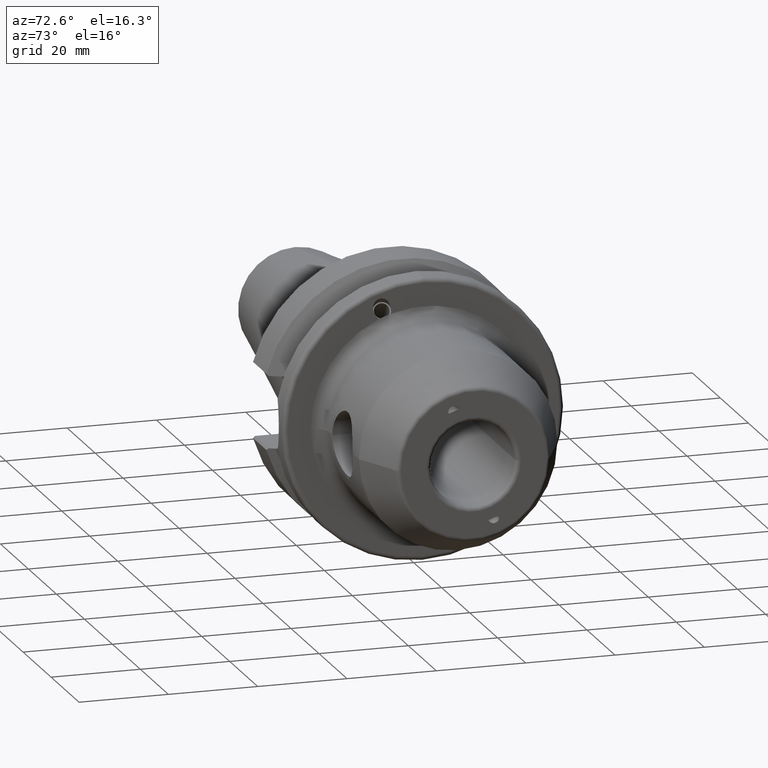
[diagram: clean part render]
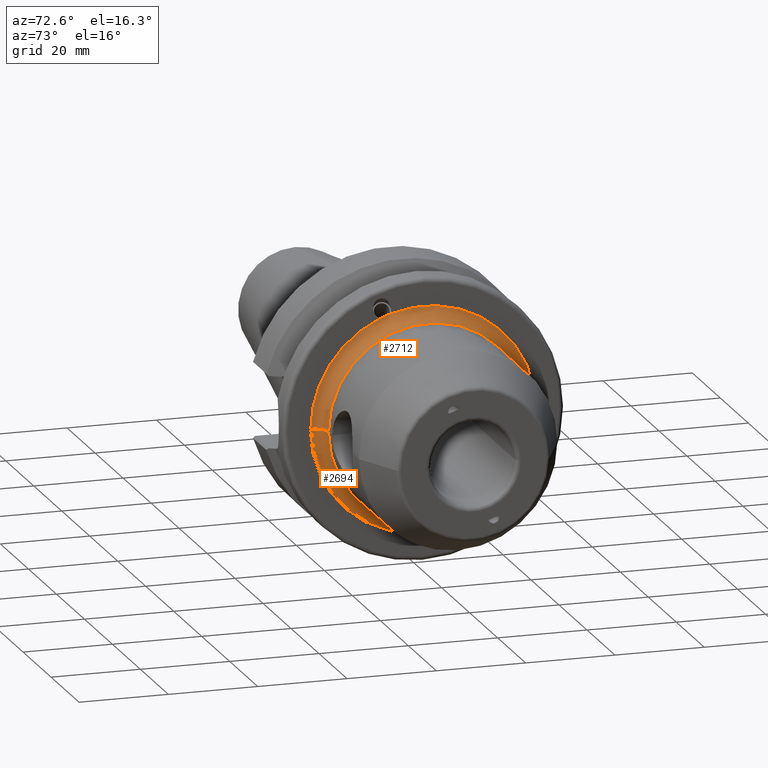
[diagram: same view with one multi-face feature highlighted, each face labeled with its STEP entity id]
A machine part, auxiliary view. The highlighted faces form ONE feature: a constant-radius fillet chain: 2 tangent blend faces with common blend radius 3 mm. The faces share edges in the B-rep.
Their STEP definitions:
[1] entity #2694 (Torus):
#358=CARTESIAN_POINT('',(3.E1,2.219152649285E1,-1.219334620643E0));
#421=CARTESIAN_POINT('',(2.989871759724E1,2.222671017497E1,0.E0));
#422=CARTESIAN_POINT('',(2.989871759724E1,2.222671017497E1,-1.934786030928E-1));
#423=CARTESIAN_POINT('',(2.991413838233E1,2.222107590173E1,-5.902465465188E-1));
#424=CARTESIAN_POINT('',(2.996489904374E1,2.220321697114E1,-1.006571401934E0));
#425=CARTESIAN_POINT('',(3.E1,2.219152649285E1,-1.219334620643E0));
#427=CARTESIAN_POINT('',(3.E1,2.5225E1,0.E0));
#428=DIRECTION('',(0.E0,0.E0,-1.E0));
#429=DIRECTION('',(-3.376080092135E-2,-9.994299416773E-1,0.E0));
#430=AXIS2_PLACEMENT_3D('',#427,#428,#429);
#432=CARTESIAN_POINT('',(3.E1,-2.5225E1,0.E0));
#433=DIRECTION('',(0.E0,0.E0,1.E0));
#434=DIRECTION('',(0.E0,1.E0,0.E0));
#435=AXIS2_PLACEMENT_3D('',#432,#433,#434);
#437=CARTESIAN_POINT('',(3.E1,0.E0,0.E0));
#438=DIRECTION('',(1.E0,0.E0,0.E0));
#439=DIRECTION('',(0.E0,-1.E0,0.E0));
#440=AXIS2_PLACEMENT_3D('',#437,#438,#439);
#446=CARTESIAN_POINT('',(2.989871759724E1,2.222671017497E1,0.E0));
#468=CARTESIAN_POINT('',(2.7E1,0.E0,0.E0));
#469=DIRECTION('',(-1.E0,0.E0,0.E0));
#470=DIRECTION('',(0.E0,2.915567479285E-1,-9.565535336495E-1));
#471=AXIS2_PLACEMENT_3D('',#468,#469,#470);
#501=CARTESIAN_POINT('',(2.7E1,0.E0,0.E0));
#502=DIRECTION('',(-1.E0,0.E0,0.E0));
#503=DIRECTION('',(0.E0,1.E0,0.E0));
#504=AXIS2_PLACEMENT_3D('',#501,#502,#503);
#1510=CARTESIAN_POINT('',(2.7E1,0.E0,0.E0));
#1511=DIRECTION('',(1.E0,0.E0,0.E0));
#1512=DIRECTION('',(0.E0,2.915567479285E-1,-9.565535336495E-1));
#1513=AXIS2_PLACEMENT_3D('',#1510,#1511,#1512);
#2110=CARTESIAN_POINT('',(2.7E1,-2.5225E1,0.E0));
#2112=VERTEX_POINT('',#2110);
#2115=CARTESIAN_POINT('',(2.7E1,2.5225E1,0.E0));
#2117=VERTEX_POINT('',#2115);
#2118=CARTESIAN_POINT('',(2.7E1,9.875974270570E0,-2.321132820859E1));
#2119=VERTEX_POINT('',#2118);
#2120=CARTESIAN_POINT('',(2.7E1,7.354518966496E0,-2.412906288631E1));
#2121=VERTEX_POINT('',#2120);
#2124=CARTESIAN_POINT('',(3.E1,-2.2225E1,0.E0));
#2125=VERTEX_POINT('',#2124);
#2156=VERTEX_POINT('',#446);
#2157=VERTEX_POINT('',#358);
#2675=CARTESIAN_POINT('',(3.E1,0.E0,0.E0));
#2676=DIRECTION('',(-1.E0,0.E0,0.E0));
#2677=DIRECTION('',(0.E0,-1.E0,0.E0));
#2678=AXIS2_PLACEMENT_3D('',#2675,#2676,#2677);
#2679=TOROIDAL_SURFACE('',#2678,2.5225E1,3.E0);
#2680=ORIENTED_EDGE('',*,*,#2652,.F.);
#2682=ORIENTED_EDGE('',*,*,#2681,.T.);
#2684=ORIENTED_EDGE('',*,*,#2683,.T.);
#2686=ORIENTED_EDGE('',*,*,#2685,.F.);
#2688=ORIENTED_EDGE('',*,*,#2687,.T.);
#2690=ORIENTED_EDGE('',*,*,#2689,.F.);
#2691=ORIENTED_EDGE('',*,*,#2663,.T.);
#2692=EDGE_LOOP('',(#2680,#2682,#2684,#2686,#2688,#2690,#2691));
#2693=FACE_OUTER_BOUND('',#2692,.F.);
#2694=ADVANCED_FACE('',(#2693),#2679,.F.);
#426=B_SPLINE_CURVE_WITH_KNOTS('',3,(#421,#422,#423,#424,#425),.UNSPECIFIED.,
.F.,.F.,(4,1,4),(0.E0,5.E-1,1.E0),.UNSPECIFIED.);
#431=CIRCLE('',#430,3.E0);
#436=CIRCLE('',#435,3.E0);
#441=CIRCLE('',#440,2.2225E1);
#472=CIRCLE('',#471,2.5225E1);
#505=CIRCLE('',#504,2.5225E1);
#1514=CIRCLE('',#1513,2.5225E1);
#2652=EDGE_CURVE('',#2156,#2157,#426,.T.);
#2663=EDGE_CURVE('',#2125,#2157,#441,.T.);
#2681=EDGE_CURVE('',#2156,#2117,#431,.T.);
#2683=EDGE_CURVE('',#2117,#2119,#505,.T.);
#2685=EDGE_CURVE('',#2121,#2119,#1514,.T.);
#2687=EDGE_CURVE('',#2121,#2112,#472,.T.);
#2689=EDGE_CURVE('',#2125,#2112,#436,.T.);
[2] entity #2712 (Torus):
#331=CARTESIAN_POINT('',(3.E1,2.219152649285E1,1.219334620643E0));
#427=CARTESIAN_POINT('',(3.E1,2.5225E1,0.E0));
#428=DIRECTION('',(0.E0,0.E0,-1.E0));
#429=DIRECTION('',(-3.376080092135E-2,-9.994299416773E-1,0.E0));
#430=AXIS2_PLACEMENT_3D('',#427,#428,#429);
#432=CARTESIAN_POINT('',(3.E1,-2.5225E1,0.E0));
#433=DIRECTION('',(0.E0,0.E0,1.E0));
#434=DIRECTION('',(0.E0,1.E0,0.E0));
#435=AXIS2_PLACEMENT_3D('',#432,#433,#434);
#442=CARTESIAN_POINT('',(3.E1,2.219152649285E1,1.219334620643E0));
#443=CARTESIAN_POINT('',(2.996494565705E1,2.220320144643E1,1.006853946930E0));
#444=CARTESIAN_POINT('',(2.991418507747E1,2.222105882438E1,5.908218291611E-1));
#445=CARTESIAN_POINT('',(2.989871759724E1,2.222671017497E1,1.937652764042E-1));
#446=CARTESIAN_POINT('',(2.989871759724E1,2.222671017497E1,0.E0));
#448=CARTESIAN_POINT('',(3.E1,0.E0,0.E0));
#449=DIRECTION('',(-1.E0,0.E0,0.E0));
#450=DIRECTION('',(0.E0,-1.E0,0.E0));
#451=AXIS2_PLACEMENT_3D('',#448,#449,#450);
#463=CARTESIAN_POINT('',(2.7E1,0.E0,0.E0));
#464=DIRECTION('',(-1.E0,0.E0,0.E0));
#465=DIRECTION('',(0.E0,-1.E0,0.E0));
#466=AXIS2_PLACEMENT_3D('',#463,#464,#465);
#506=CARTESIAN_POINT('',(2.7E1,0.E0,0.E0));
#507=DIRECTION('',(-1.E0,0.E0,0.E0));
#508=DIRECTION('',(0.E0,-2.915567479285E-1,9.565535336495E-1));
#509=AXIS2_PLACEMENT_3D('',#506,#507,#508);
#1515=CARTESIAN_POINT('',(2.7E1,0.E0,0.E0));
#1516=DIRECTION('',(-1.E0,0.E0,0.E0));
#1517=DIRECTION('',(0.E0,-3.915153328273E-1,9.201715840870E-1));
#1518=AXIS2_PLACEMENT_3D('',#1515,#1516,#1517);
#2110=CARTESIAN_POINT('',(2.7E1,-2.5225E1,0.E0));
#2111=CARTESIAN_POINT('',(2.7E1,-9.875974270570E0,2.321132820859E1));
#2112=VERTEX_POINT('',#2110);
#2113=VERTEX_POINT('',#2111);
#2114=CARTESIAN_POINT('',(2.7E1,-7.354518966496E0,2.412906288631E1));
#2115=CARTESIAN_POINT('',(2.7E1,2.5225E1,0.E0));
#2116=VERTEX_POINT('',#2114);
#2117=VERTEX_POINT('',#2115);
#2124=CARTESIAN_POINT('',(3.E1,-2.2225E1,0.E0));
#2125=VERTEX_POINT('',#2124);
#2155=VERTEX_POINT('',#331);
#2156=VERTEX_POINT('',#446);
#2695=CARTESIAN_POINT('',(3.E1,0.E0,0.E0));
#2696=DIRECTION('',(-1.E0,0.E0,0.E0));
#2697=DIRECTION('',(0.E0,-1.E0,0.E0));
#2698=AXIS2_PLACEMENT_3D('',#2695,#2696,#2697);
#2699=TOROIDAL_SURFACE('',#2698,2.5225E1,3.E0);
#2700=ORIENTED_EDGE('',*,*,#2650,.F.);
#2701=ORIENTED_EDGE('',*,*,#2637,.F.);
#2702=ORIENTED_EDGE('',*,*,#2689,.T.);
#2704=ORIENTED_EDGE('',*,*,#2703,.T.);
#2706=ORIENTED_EDGE('',*,*,#2705,.T.);
#2708=ORIENTED_EDGE('',*,*,#2707,.T.);
#2709=ORIENTED_EDGE('',*,*,#2681,.F.);
#2710=EDGE_LOOP('',(#2700,#2701,#2702,#2704,#2706,#2708,#2709));
#2711=FACE_OUTER_BOUND('',#2710,.F.);
#2712=ADVANCED_FACE('',(#2711),#2699,.F.);
#431=CIRCLE('',#430,3.E0);
#436=CIRCLE('',#435,3.E0);
#447=B_SPLINE_CURVE_WITH_KNOTS('',3,(#442,#443,#444,#445,#446),.UNSPECIFIED.,
.F.,.F.,(4,1,4),(0.E0,5.E-1,1.E0),.UNSPECIFIED.);
#452=CIRCLE('',#451,2.2225E1);
#467=CIRCLE('',#466,2.5225E1);
#510=CIRCLE('',#509,2.5225E1);
#1519=CIRCLE('',#1518,2.5225E1);
#2637=EDGE_CURVE('',#2125,#2155,#452,.T.);
#2650=EDGE_CURVE('',#2155,#2156,#447,.T.);
#2681=EDGE_CURVE('',#2156,#2117,#431,.T.);
#2689=EDGE_CURVE('',#2125,#2112,#436,.T.);
#2703=EDGE_CURVE('',#2112,#2113,#467,.T.);
#2705=EDGE_CURVE('',#2113,#2116,#1519,.T.);
#2707=EDGE_CURVE('',#2116,#2117,#510,.T.);